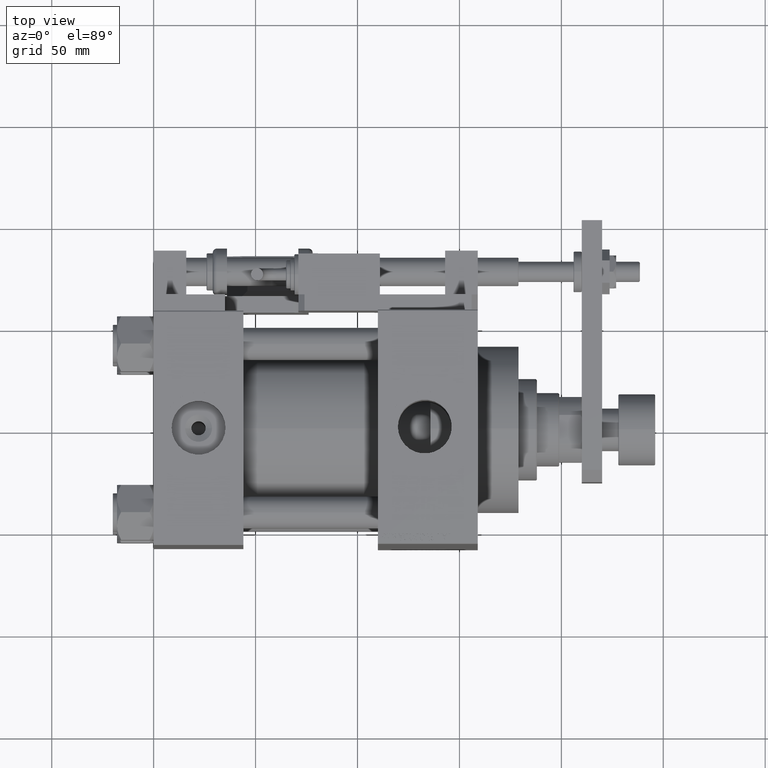
[diagram: clean part render]
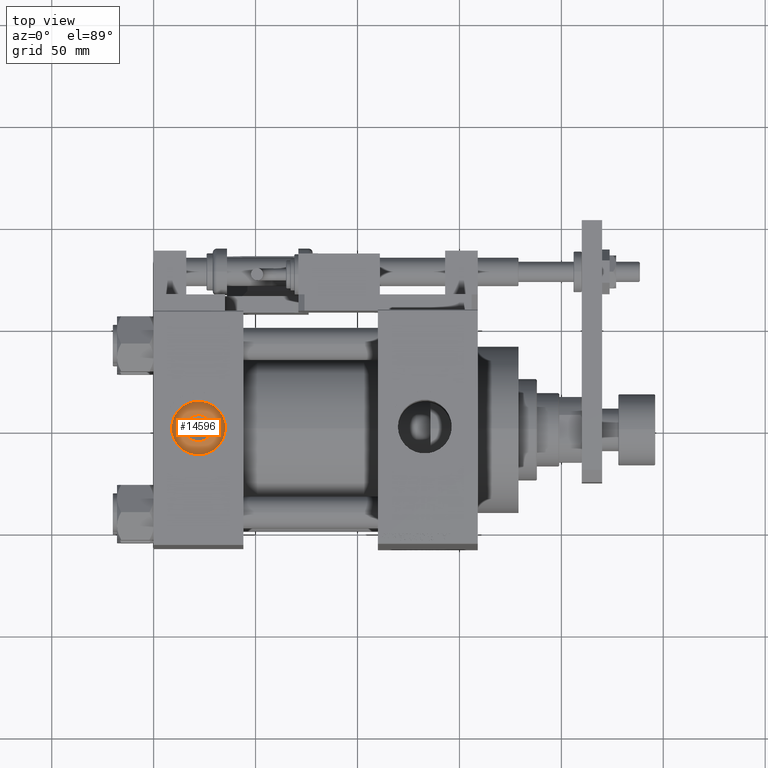
[diagram: same view with one face highlighted and labeled with its STEP entity id]
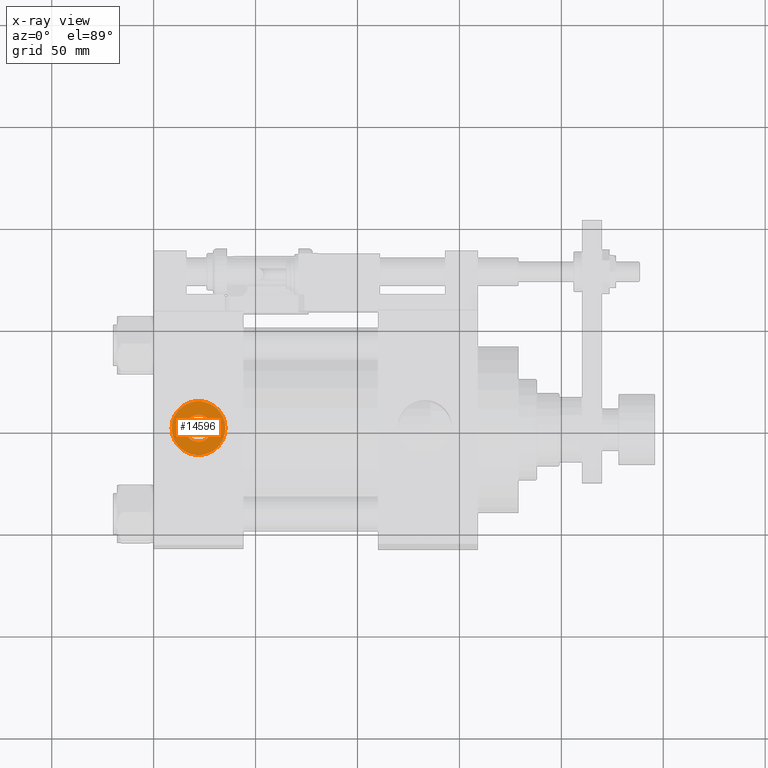
[diagram: x-ray of the same camera — body ghosted, the highlighted face saturated]
A machine part, top view. The second image highlights one B-rep face of the part: STEP entity #14596.
The next image is the same camera in x-ray: the body ghosted, the highlighted face saturated — about 0% of this face is hidden behind the body in this view.
In plain terms, the highlighted planar face has unit normal (0, 0, 1).
Its self-contained STEP definition (entity closure, byte-faithful):
#206 = CARTESIAN_POINT ( 'NONE',  ( 22.00000000000000000, -1.214306433183765124E-14, 46.70000000000000284 ) ) ;
#467 = ORIENTED_EDGE ( 'NONE', *, *, #19145, .T. ) ;
#1632 = CARTESIAN_POINT ( 'NONE',  ( 22.00000000000000000, -1.214306433183765124E-14, 46.70000000000000284 ) ) ;
#2172 = DIRECTION ( 'NONE',  ( 0.000000000000000000, 0.000000000000000000, 1.000000000000000000 ) ) ;
#3919 = AXIS2_PLACEMENT_3D ( 'NONE', #1632, #19063, #26695 ) ;
#5002 = ORIENTED_EDGE ( 'NONE', *, *, #34361, .T. ) ;
#5260 = AXIS2_PLACEMENT_3D ( 'NONE', #25078, #50637, #32961 ) ;
#5652 = CIRCLE ( 'NONE', #36985, 13.22000000000000242 ) ;
#6544 = CIRCLE ( 'NONE', #3919, 13.22000000000000242 ) ;
#10424 = AXIS2_PLACEMENT_3D ( 'NONE', #206, #17892, #38035 ) ;
#11317 = CIRCLE ( 'NONE', #5260, 6.640000000000006786 ) ;
#11411 = CARTESIAN_POINT ( 'NONE',  ( 22.00000000000000000, -1.214306433183765124E-14, 46.70000000000000284 ) ) ;
#12944 = ORIENTED_EDGE ( 'NONE', *, *, #45731, .T. ) ;
#14596 = ADVANCED_FACE ( 'NONE', ( #44088, #23414 ), #48714, .T. ) ;
#16377 = CARTESIAN_POINT ( 'NONE',  ( 22.00000000000000000, -1.214306433183765124E-14, 46.70000000000000284 ) ) ;
#17892 = DIRECTION ( 'NONE',  ( -0.000000000000000000, -0.000000000000000000, -1.000000000000000000 ) ) ;
#18539 = AXIS2_PLACEMENT_3D ( 'NONE', #11411, #2172, #27760 ) ;
#18668 = VERTEX_POINT ( 'NONE', #46623 ) ;
#19063 = DIRECTION ( 'NONE',  ( 0.000000000000000000, 0.000000000000000000, 1.000000000000000000 ) ) ;
#19145 = EDGE_CURVE ( 'NONE', #18668, #23524, #6544, .T. ) ;
#19405 = CARTESIAN_POINT ( 'NONE',  ( 15.35999999999999233, -1.132989885720380834E-14, 46.70000000000000284 ) ) ;
#23414 = FACE_OUTER_BOUND ( 'NONE', #29603, .T. ) ;
#23524 = VERTEX_POINT ( 'NONE', #43292 ) ;
#25078 = CARTESIAN_POINT ( 'NONE',  ( 22.00000000000000000, -1.214306433183765124E-14, 46.70000000000000284 ) ) ;
#26695 = DIRECTION ( 'NONE',  ( 1.000000000000000000, 0.000000000000000000, 0.000000000000000000 ) ) ;
#27760 = DIRECTION ( 'NONE',  ( 1.000000000000000000, 0.000000000000000000, -0.000000000000000000 ) ) ;
#29603 = EDGE_LOOP ( 'NONE', ( #467, #12944 ) ) ;
#32961 = DIRECTION ( 'NONE',  ( 1.000000000000000000, 0.000000000000000000, 0.000000000000000000 ) ) ;
#33500 = EDGE_CURVE ( 'NONE', #47282, #43042, #33895, .T. ) ;
#33895 = CIRCLE ( 'NONE', #10424, 6.640000000000006786 ) ;
#34295 = CARTESIAN_POINT ( 'NONE',  ( 28.64000000000000412, -1.214306433183765124E-14, 46.70000000000000284 ) ) ;
#34361 = EDGE_CURVE ( 'NONE', #43042, #47282, #11317, .T. ) ;
#35733 = EDGE_LOOP ( 'NONE', ( #5002, #42924 ) ) ;
#36985 = AXIS2_PLACEMENT_3D ( 'NONE', #16377, #40874, #49593 ) ;
#38035 = DIRECTION ( 'NONE',  ( 1.000000000000000000, 0.000000000000000000, 0.000000000000000000 ) ) ;
#40874 = DIRECTION ( 'NONE',  ( 0.000000000000000000, 0.000000000000000000, 1.000000000000000000 ) ) ;
#42924 = ORIENTED_EDGE ( 'NONE', *, *, #33500, .T. ) ;
#43042 = VERTEX_POINT ( 'NONE', #34295 ) ;
#43292 = CARTESIAN_POINT ( 'NONE',  ( 8.779999999999994031, -1.052408126336485088E-14, 46.70000000000000284 ) ) ;
#44088 = FACE_BOUND ( 'NONE', #35733, .T. ) ;
#45731 = EDGE_CURVE ( 'NONE', #23524, #18668, #5652, .T. ) ;
#46623 = CARTESIAN_POINT ( 'NONE',  ( 35.21999999999999886, -1.214306433183765124E-14, 46.70000000000000284 ) ) ;
#47282 = VERTEX_POINT ( 'NONE', #19405 ) ;
#48714 = PLANE ( 'NONE',  #18539 ) ;
#49593 = DIRECTION ( 'NONE',  ( 1.000000000000000000, 0.000000000000000000, 0.000000000000000000 ) ) ;
#50637 = DIRECTION ( 'NONE',  ( -0.000000000000000000, -0.000000000000000000, -1.000000000000000000 ) ) ;